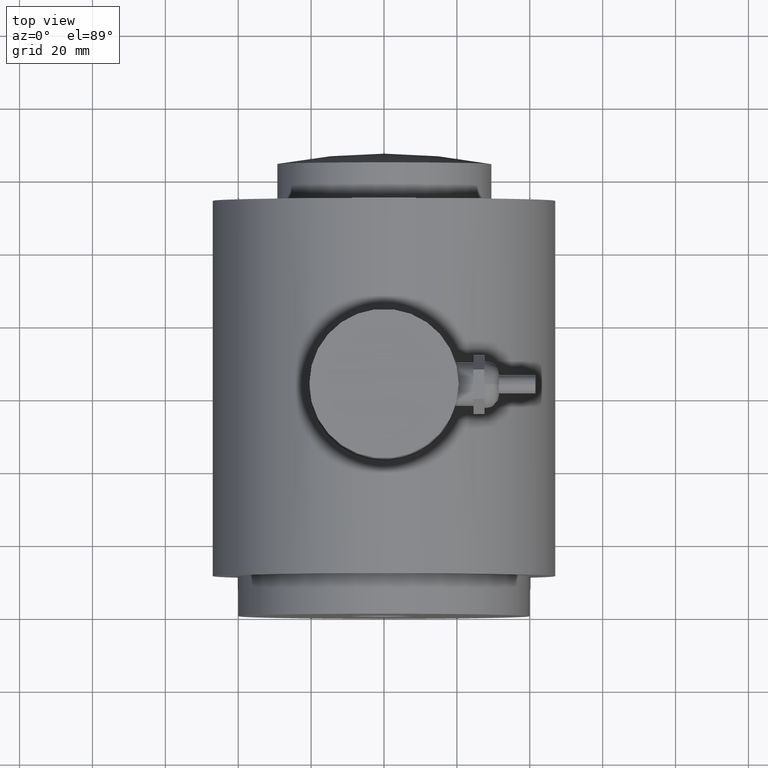
[diagram: clean part render]
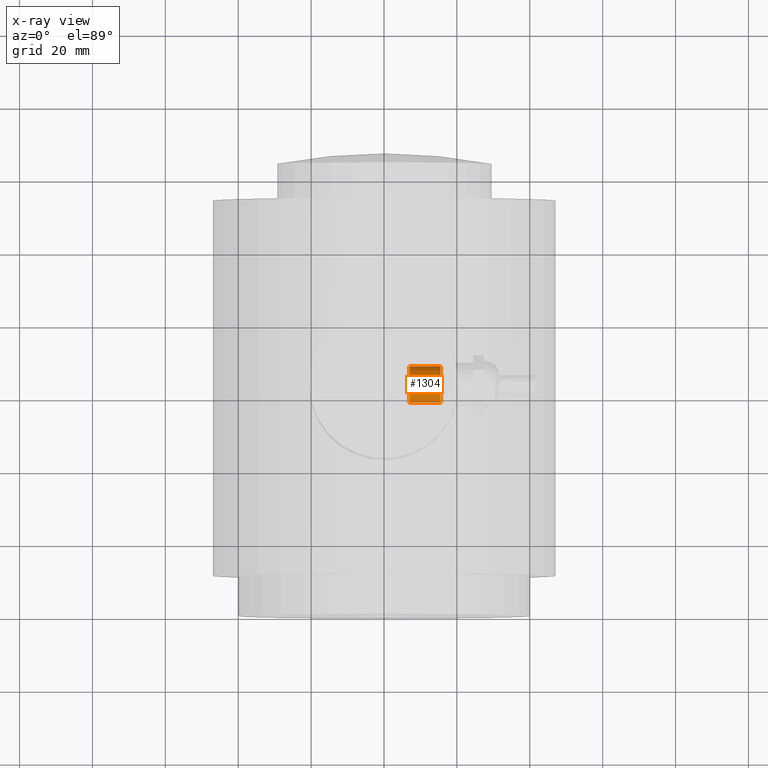
[diagram: x-ray — body ghosted, one internal face saturated and labeled with its STEP entity id]
A machine part, top view, then the same camera in x-ray: the body is ghosted and one INTERNAL B-rep face — a face not visible from any outside direction — is saturated and labeled: STEP entity #1304.
In plain terms, the highlighted cylindrical surface (bore or boss wall) has radius 5 mm, axis along (-1, 0, 0).
Its self-contained STEP definition (entity closure, byte-faithful):
#207=FACE_OUTER_BOUND('',#291,.T.);
#291=EDGE_LOOP('',(#1143,#1144,#1145,#1146,#1147,#1148));
#387=LINE('',#5729,#471);
#471=VECTOR('',#1689,0.196850393700787);
#493=CIRCLE('',#1412,0.196850393700787);
#494=CIRCLE('',#1413,0.196850393700787);
#495=CIRCLE('',#1415,0.196850393700787);
#496=CIRCLE('',#1416,0.196850393700787);
#611=VERTEX_POINT('',#5718);
#612=VERTEX_POINT('',#5719);
#614=VERTEX_POINT('',#5725);
#615=VERTEX_POINT('',#5726);
#792=EDGE_CURVE('',#611,#612,#493,.T.);
#793=EDGE_CURVE('',#612,#611,#494,.T.);
#795=EDGE_CURVE('',#614,#615,#495,.T.);
#796=EDGE_CURVE('',#615,#614,#496,.T.);
#797=EDGE_CURVE('',#615,#612,#387,.T.);
#1143=ORIENTED_EDGE('',*,*,#795,.F.);
#1144=ORIENTED_EDGE('',*,*,#796,.F.);
#1145=ORIENTED_EDGE('',*,*,#797,.T.);
#1146=ORIENTED_EDGE('',*,*,#793,.T.);
#1147=ORIENTED_EDGE('',*,*,#792,.T.);
#1148=ORIENTED_EDGE('',*,*,#797,.F.);
#1231=CYLINDRICAL_SURFACE('',#1414,0.196850393700787);
#1304=ADVANCED_FACE('',(#207),#1231,.F.);
#1412=AXIS2_PLACEMENT_3D('',#5720,#1678,#1679);
#1413=AXIS2_PLACEMENT_3D('',#5721,#1680,#1681);
#1414=AXIS2_PLACEMENT_3D('',#5724,#1683,#1684);
#1415=AXIS2_PLACEMENT_3D('',#5727,#1685,#1686);
#1416=AXIS2_PLACEMENT_3D('',#5728,#1687,#1688);
#1678=DIRECTION('center_axis',(-1.,0.,0.));
#1679=DIRECTION('ref_axis',(0.,1.,0.));
#1680=DIRECTION('center_axis',(-1.,0.,0.));
#1681=DIRECTION('ref_axis',(0.,1.,0.));
#1683=DIRECTION('center_axis',(-1.,0.,0.));
#1684=DIRECTION('ref_axis',(0.,1.,0.));
#1685=DIRECTION('center_axis',(-1.,0.,0.));
#1686=DIRECTION('ref_axis',(0.,1.,0.));
#1687=DIRECTION('center_axis',(-1.,0.,0.));
#1688=DIRECTION('ref_axis',(0.,1.,0.));
#1689=DIRECTION('',(-1.,0.,0.));
#5718=CARTESIAN_POINT('',(0.275590551181103,2.65748031496063,2.40157480314961));
#5719=CARTESIAN_POINT('',(0.275590551181103,2.26377952755906,2.40157480314961));
#5720=CARTESIAN_POINT('Origin',(0.275590551181103,2.46062992125984,2.40157480314961));
#5721=CARTESIAN_POINT('Origin',(0.275590551181103,2.46062992125984,2.40157480314961));
#5724=CARTESIAN_POINT('Origin',(0.442913385826772,2.46062992125984,2.40157480314961));
#5725=CARTESIAN_POINT('',(0.610236220472441,2.65748031496063,2.40157480314961));
#5726=CARTESIAN_POINT('',(0.610236220472441,2.26377952755906,2.40157480314961));
#5727=CARTESIAN_POINT('Origin',(0.610236220472441,2.46062992125984,2.40157480314961));
#5728=CARTESIAN_POINT('Origin',(0.610236220472441,2.46062992125984,2.40157480314961));
#5729=CARTESIAN_POINT('',(0.442913385826772,2.26377952755906,2.40157480314961));